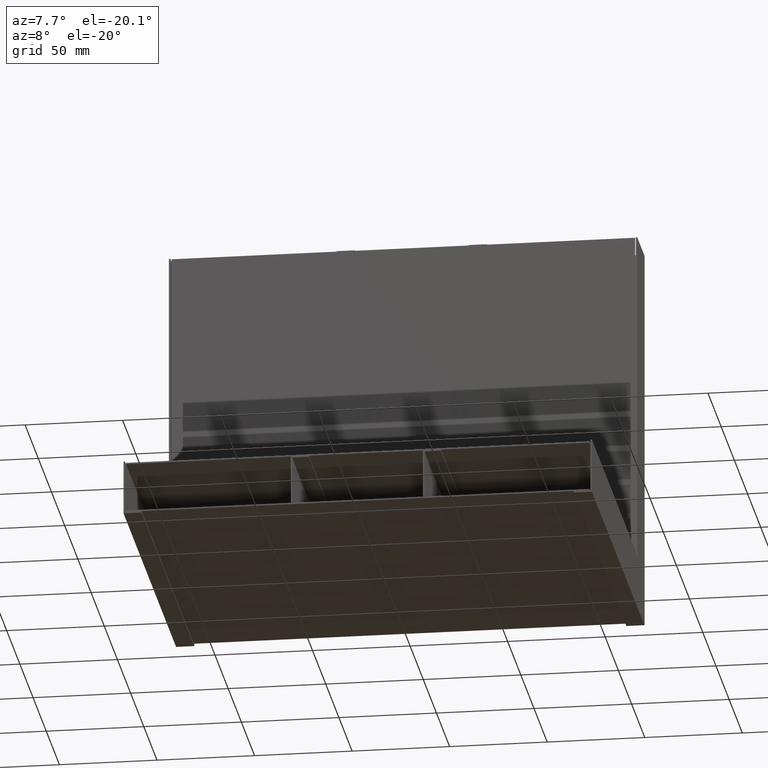
[diagram: clean part render]
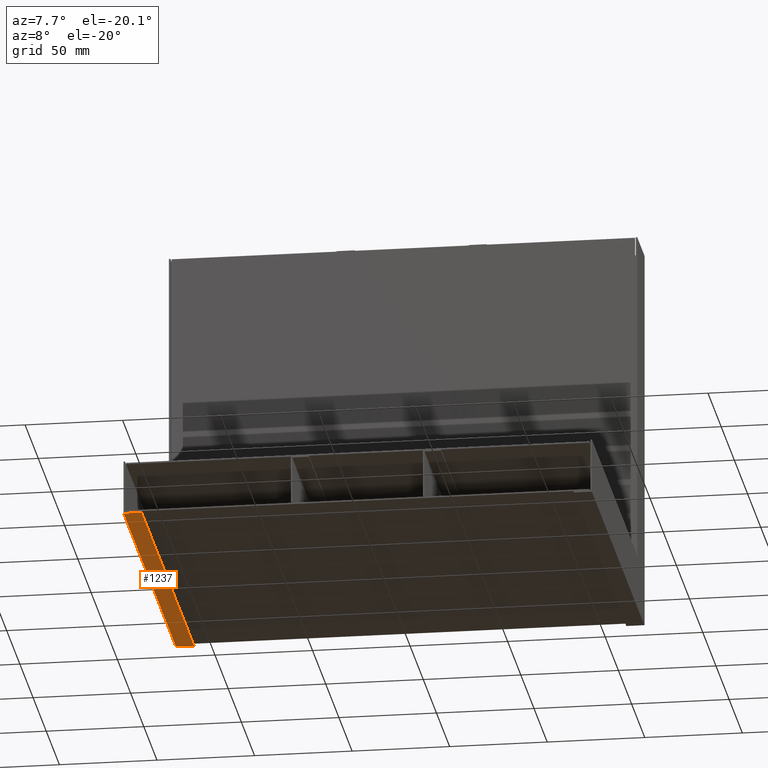
[diagram: same view with one face highlighted and labeled with its STEP entity id]
A machine part, auxiliary view. The second image highlights one B-rep face of the part: STEP entity #1237.
In plain terms, the highlighted planar face has unit normal (0, 0, 1).
Its self-contained STEP definition (entity closure, byte-faithful):
#907=DIRECTION('',(0.E0,1.E0,0.E0));
#908=VECTOR('',#907,9.25E0);
#909=CARTESIAN_POINT('',(-1.3E1,0.E0,-2.E2));
#910=LINE('',#909,#908);
#914=DIRECTION('',(1.E0,0.E0,0.E0));
#915=VECTOR('',#914,1.99E2);
#916=CARTESIAN_POINT('',(-1.3E1,0.E0,-2.E2));
#917=LINE('',#916,#915);
#921=DIRECTION('',(0.E0,1.E0,0.E0));
#922=VECTOR('',#921,9.25E0);
#923=CARTESIAN_POINT('',(1.86E2,0.E0,-2.E2));
#924=LINE('',#923,#922);
#936=DIRECTION('',(1.E0,0.E0,0.E0));
#937=VECTOR('',#936,1.99E2);
#938=CARTESIAN_POINT('',(-1.3E1,9.25E0,-2.E2));
#939=LINE('',#938,#937);
#998=CARTESIAN_POINT('',(1.86E2,0.E0,-2.E2));
#999=VERTEX_POINT('',#998);
#1000=CARTESIAN_POINT('',(-1.3E1,0.E0,-2.E2));
#1001=VERTEX_POINT('',#1000);
#1011=CARTESIAN_POINT('',(-1.3E1,9.25E0,-2.E2));
#1013=VERTEX_POINT('',#1011);
#1024=CARTESIAN_POINT('',(1.86E2,9.25E0,-2.E2));
#1025=VERTEX_POINT('',#1024);
#1225=CARTESIAN_POINT('',(-1.3E1,7.5E-1,-2.E2));
#1226=DIRECTION('',(0.E0,0.E0,1.E0));
#1227=DIRECTION('',(1.E0,0.E0,0.E0));
#1228=AXIS2_PLACEMENT_3D('',#1225,#1226,#1227);
#1229=PLANE('',#1228);
#1230=ORIENTED_EDGE('',*,*,#1190,.T.);
#1231=ORIENTED_EDGE('',*,*,#1068,.T.);
#1233=ORIENTED_EDGE('',*,*,#1232,.F.);
#1234=ORIENTED_EDGE('',*,*,#1217,.F.);
#1235=EDGE_LOOP('',(#1230,#1231,#1233,#1234));
#1236=FACE_OUTER_BOUND('',#1235,.F.);
#1068=EDGE_CURVE('',#999,#1025,#924,.T.);
#1190=EDGE_CURVE('',#1001,#999,#917,.T.);
#1217=EDGE_CURVE('',#1001,#1013,#910,.T.);
#1232=EDGE_CURVE('',#1013,#1025,#939,.T.);
#1237=ADVANCED_FACE('',(#1236),#1229,.F.);